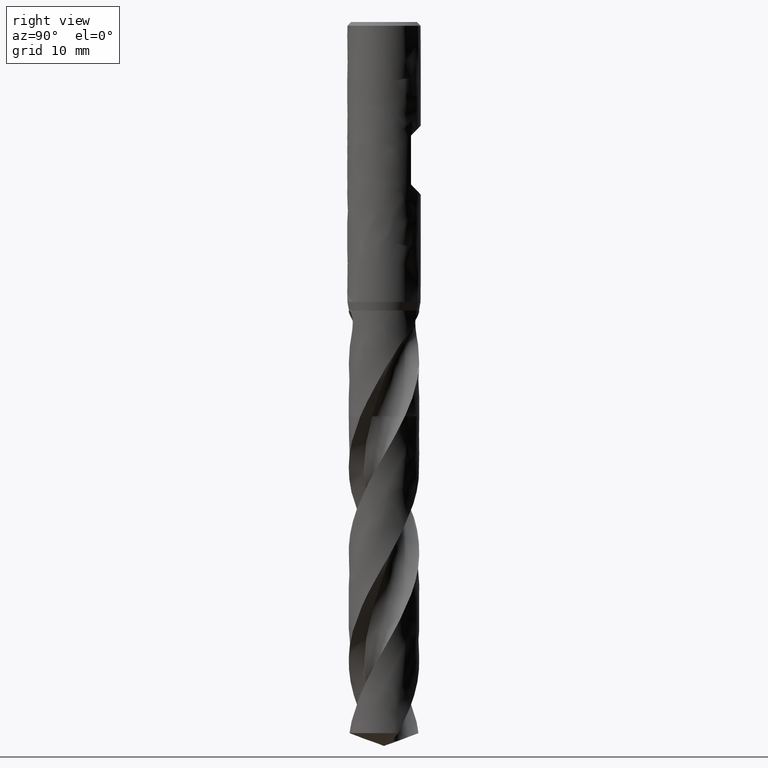
[diagram: clean part render]
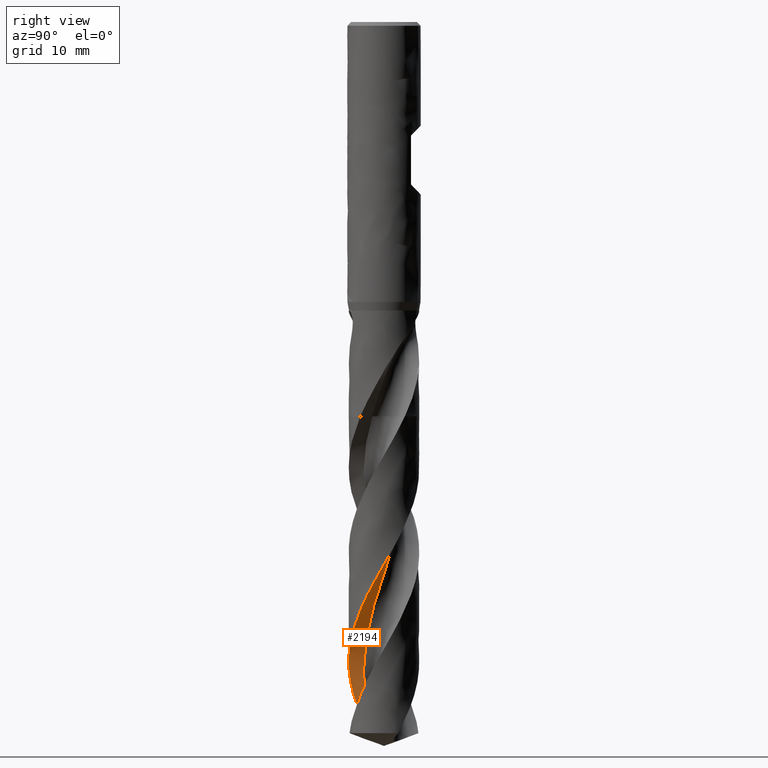
[diagram: same view with one face highlighted and labeled with its STEP entity id]
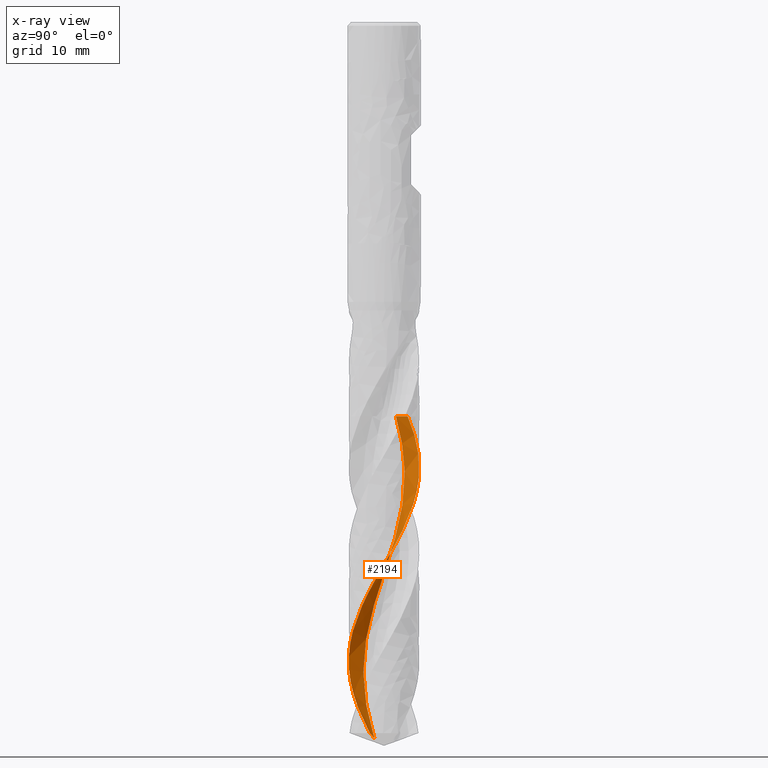
[diagram: x-ray of the same camera — body ghosted, the highlighted face saturated]
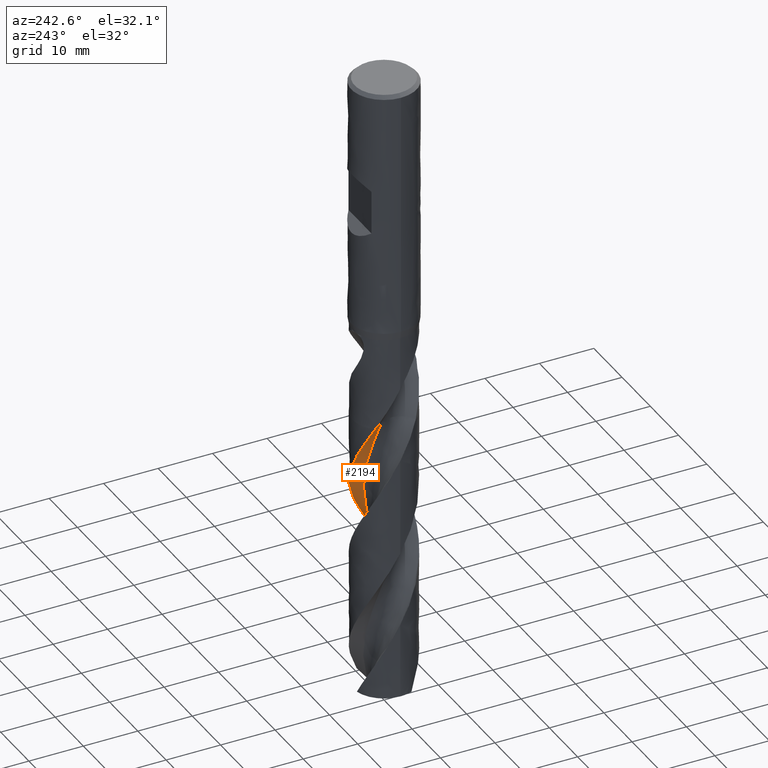
[diagram: same view with one face highlighted and labeled with its STEP entity id]
A machine part, right view. The second image highlights one B-rep face of the part: STEP entity #2194.
The next image is the same camera in x-ray: the body ghosted, the highlighted face saturated — about 0% of this face is hidden behind the body in this view.
A second angle (auxiliary view) of the same face is appended — the face is thin or edge-on in the first view.
In plain terms, the highlighted face is a freeform B-spline surface patch.
Its self-contained STEP definition (entity closure, byte-faithful):
#2001 = VERTEX_POINT('', #2002);
#2002 = CARTESIAN_POINT('', (-4.27134242140595, 3.84943293474481, -64.25));
#2011 = EDGE_CURVE('', #2001, #2012, #2014, .T.);
#2012 = VERTEX_POINT('', #2013);
#2013 = CARTESIAN_POINT('', (-2.85427294277105, 1.92458653094203, -64.25));
#2014 = LINE('', #2015, #2016);
#2015 = CARTESIAN_POINT('', (-4.27134242140596, 3.84943293474481, -64.25));
#2016 = VECTOR('', #2017, 2.39021329289064);
#2017 = DIRECTION('', (1.41706947863491, -1.92484640380278, 0.));
#2194 = ADVANCED_FACE('', (#2195), #2491, .T.);
#2195 = FACE_OUTER_BOUND('', #2196, .T.);
#2196 = EDGE_LOOP('', (#2197, #2198, #2402, #2435));
#2197 = ORIENTED_EDGE('', *, *, #2011, .F.);
#2198 = ORIENTED_EDGE('', *, *, #2199, .F.);
#2199 = EDGE_CURVE('', #2200, #2001, #2202, .T.);
#2200 = VERTEX_POINT('', #2201);
#2201 = CARTESIAN_POINT('', (-5.26135635836145, -2.31961834583396, -115.907171152969));
#2202 = B_SPLINE_CURVE_WITH_KNOTS('', 3, (#2203, #2204, #2205, #2206, #2207, #2208, #2209, #2210, #2211, #2212, #2213, #2214, #2215, #2216, #2217, #2218, #2219, #2220, #2221, #2222, #2223, #2224, #2225, #2226, #2227, #2228, #2229, #2230, #2231, #2232, #2233, #2234, #2235, #2236, #2237, #2238, #2239, #2240, #2241, #2242, #2243, #2244, #2245, #2246, #2247, #2248, #2249, #2250, #2251, #2252, #2253, #2254, #2255, #2256, #2257, #2258, #2259, #2260, #2261, #2262, #2263, #2264, #2265, #2266, #2267, #2268, #2269, #2270, #2271, #2272, #2273, #2274, #2275, #2276, #2277, #2278, #2279, #2280, #2281, #2282, #2283, #2284, #2285, #2286, #2287, #2288, #2289, #2290, #2291, #2292, #2293, #2294, #2295, #2296, #2297, #2298, #2299, #2300, #2301, #2302, #2303, #2304, #2305, #2306, #2307, #2308, #2309, #2310, #2311, #2312, #2313, #2314, #2315, #2316, #2317, #2318, #2319, #2320, #2321, #2322, #2323, #2324, #2325, #2326, #2327, #2328, #2329, #2330, #2331, #2332, #2333, #2334, #2335, #2336, #2337, #2338, #2339, #2340, #2341, #2342, #2343, #2344, #2345, #2346, #2347, #2348, #2349, #2350, #2351, #2352, #2353, #2354, #2355, #2356, #2357, #2358, #2359, #2360, #2361, #2362, #2363, #2364, #2365, #2366, #2367, #2368, #2369, #2370, #2371, #2372, #2373, #2374, #2375, #2376, #2377, #2378, #2379, #2380, #2381, #2382, #2383, #2384, #2385, #2386, #2387, #2388, #2389, #2390, #2391, #2392, #2393, #2394, #2395, #2396, #2397, #2398, #2399, #2400, #2401), .UNSPECIFIED., .F., .U., (4, 3, 3, 3, 3, 3, 3, 3, 3, 3, 3, 3, 3, 3, 3, 3, 3, 3, 3, 3, 3, 3, 3, 3, 3, 3, 3, 3, 3, 3, 3, 3, 3, 3, 3, 3, 3, 3, 3, 3, 3, 3, 3, 3, 3, 3, 3, 3, 3, 3, 3, 3, 3, 3, 3, 3, 3, 3, 3, 3, 3, 3, 3, 3, 3, 3, 4), (0., 0.998414479724243, 1.99659645598566, 2.99454959505258, 3.99227675722209, 4.98977972626542, 5.98705925085884, 6.98411508388555, 7.98094666830413, 8.97755268947959, 9.97393085938471, 10.9700778139643, 11.9659890210908, 12.9616591386549, 13.4046119723775, 13.4629950916536, 14.4626220986255, 15.4619818605631, 16.4610837318212, 17.4599356633324, 18.458544260042, 19.4569148333751, 20.4550514852051, 21.4529576306737, 22.4506359286902, 23.4480881072607, 24.4453149261284, 25.4423161335359, 26.4390906393307, 27.435636822129, 28.4319521918894, 29.4280332727842, 30.4238754839512, 31.4194730651083, 31.6164413630587, 31.6748227838148, 32.6744656250704, 33.673838739403, 34.6729515222966, 35.6718119551881, 36.67042668883, 37.6688011014597, 38.6669394625266, 39.6648452511906, 40.6625210692326, 41.6599686100853, 42.6571886210314, 43.6541808776715, 44.6509443866024, 45.6474774139095, 46.6437773655035, 47.6398406817852, 48.635662717946, 49.6312377126156, 49.7625682662065, 49.82094659498, 49.8793387001849, 50.8789880386061, 51.8783654414984, 52.8774803351429, 53.8763406892218, 54.8749532949484, 55.8733234669974, 56.8714553546491, 57.8693539970818, 58.8670161091653, 59.4941336467885), .UNSPECIFIED.);
#2203 = CARTESIAN_POINT('', (-5.26135635836145, -2.31961834583396, -115.907171152969));
#2204 = CARTESIAN_POINT('', (-5.19499713504465, -2.47013427969904, -115.61786083562));
#2205 = CARTESIAN_POINT('', (-5.12215416717777, -2.61784308502145, -115.328491218301));
#2206 = CARTESIAN_POINT('', (-5.04312508867052, -2.76213492429712, -115.039193236178));
#2207 = CARTESIAN_POINT('', (-4.96411441387715, -2.90639316194445, -114.749962623654));
#2208 = CARTESIAN_POINT('', (-4.87888593919967, -3.04729917764488, -114.4606725505));
#2209 = CARTESIAN_POINT('', (-4.78778802076556, -3.18427163857196, -114.171454315795));
#2210 = CARTESIAN_POINT('', (-4.69671098689215, -3.32121269801673, -113.882302385522));
#2211 = CARTESIAN_POINT('', (-4.59972739226941, -3.4542818106809, -113.593091139229));
#2212 = CARTESIAN_POINT('', (-4.49723457600089, -3.58292913248672, -113.303951367065));
#2213 = CARTESIAN_POINT('', (-4.39476496824561, -3.71154732334289, -113.014877067824));
#2214 = CARTESIAN_POINT('', (-4.28674278734925, -3.83580316939084, -112.725744056488));
#2215 = CARTESIAN_POINT('', (-4.17361230808771, -3.95518144991841, -112.436681899132));
#2216 = CARTESIAN_POINT('', (-4.06050724967946, -4.07453290568775, -112.147684695154));
#2217 = CARTESIAN_POINT('', (-3.94224437339595, -4.189063608864, -111.858629205161));
#2218 = CARTESIAN_POINT('', (-3.8193112082285, -4.29829755771981, -111.569644275695));
#2219 = CARTESIAN_POINT('', (-3.6964055805565, -4.40750703775662, -111.28072407995));
#2220 = CARTESIAN_POINT('', (-3.56877550656159, -4.51147216914094, -110.991745326284));
#2221 = CARTESIAN_POINT('', (-3.43694620910572, -4.60976146407965, -110.702837669436));
#2222 = CARTESIAN_POINT('', (-3.30514648119515, -4.70802871255513, -110.413994815088));
#2223 = CARTESIAN_POINT('', (-3.16909092017596, -4.80066636154309, -110.125092670704));
#2224 = CARTESIAN_POINT('', (-3.02933772961245, -4.88729095920699, -109.83626220189));
#2225 = CARTESIAN_POINT('', (-2.88961597104846, -4.97389607406481, -109.547496694164));
#2226 = CARTESIAN_POINT('', (-2.74613725925012, -5.05452864349765, -109.258671784042));
#2227 = CARTESIAN_POINT('', (-2.59949039122711, -5.12885461930029, -108.969918464394));
#2228 = CARTESIAN_POINT('', (-2.45287670648567, -5.20316377660679, -108.681230483901));
#2229 = CARTESIAN_POINT('', (-2.30303149537123, -5.27120198256391, -108.39248354019));
#2230 = CARTESIAN_POINT('', (-2.15057136138355, -5.33268626675121, -108.103807659944));
#2231 = CARTESIAN_POINT('', (-1.99814608393342, -5.39415649395715, -107.815197778863));
#2232 = CARTESIAN_POINT('', (-1.84303800233283, -5.44910359513386, -107.526529480144));
#2233 = CARTESIAN_POINT('', (-1.68588719547832, -5.49729791480527, -107.237931751545));
#2234 = CARTESIAN_POINT('', (-1.5287728563788, -5.54548105070565, -106.949400993721));
#2235 = CARTESIAN_POINT('', (-1.36954460205386, -5.58693666092133, -106.660811919677));
#2236 = CARTESIAN_POINT('', (-1.20885955871396, -5.62149077801488, -106.372293535193));
#2237 = CARTESIAN_POINT('', (-1.0482125429859, -5.65603671755484, -106.083843431271));
#2238 = CARTESIAN_POINT('', (-0.886036929015077, -5.68370008238491, -105.795334429359));
#2239 = CARTESIAN_POINT('', (-0.722999940138083, -5.70436421405238, -105.506896772363));
#2240 = CARTESIAN_POINT('', (-0.560002419153434, -5.72502334335977, -105.218528940174));
#2241 = CARTESIAN_POINT('', (-0.396072340438951, -5.73869573536417, -104.930101763175));
#2242 = CARTESIAN_POINT('', (-0.231883033956536, -5.74532246776152, -104.641746156039));
#2243 = CARTESIAN_POINT('', (-0.158838641752371, -5.74827056255914, -104.513462770761));
#2244 = CARTESIAN_POINT('', (-0.0857325556488287, -5.74982562374547, -104.385174925186));
#2245 = CARTESIAN_POINT('', (-0.0126247666488689, -5.7499861404413, -104.256893878824));
#2246 = CARTESIAN_POINT('', (-0.00298884056317718, -5.7500072972433, -104.2399858763));
#2247 = CARTESIAN_POINT('', (0.0066471790376687, -5.7500042319831, -104.223077879411));
#2248 = CARTESIAN_POINT('', (0.0162831568373254, -5.74997694419755, -104.206169915143));
#2249 = CARTESIAN_POINT('', (0.181268922698223, -5.74950972682824, -103.916674288231));
#2250 = CARTESIAN_POINT('', (0.346282890648198, -5.74193486125476, -103.627119179157));
#2251 = CARTESIAN_POINT('', (0.510639378247323, -5.72728098013217, -103.337636108872));
#2252 = CARTESIAN_POINT('', (0.674951926002038, -5.71263101664779, -103.048230430366));
#2253 = CARTESIAN_POINT('', (0.838680559321947, -5.6908993408074, -102.75876470623));
#2254 = CARTESIAN_POINT('', (1.00114654911802, -5.6621732212278, -102.469371386085));
#2255 = CARTESIAN_POINT('', (1.16357061360742, -5.63345451459275, -102.180052745593));
#2256 = CARTESIAN_POINT('', (1.32480448501073, -5.59773226237385, -101.890674135865));
#2257 = CARTESIAN_POINT('', (1.484179239903, -5.55515184165482, -101.601367703433));
#2258 = CARTESIAN_POINT('', (1.64351412490105, -5.51258207304234, -101.312133645178));
#2259 = CARTESIAN_POINT('', (1.80106235182901, -5.46313840473684, -101.022840079911));
#2260 = CARTESIAN_POINT('', (1.95616861996202, -5.40702361103369, -100.733618181112));
#2261 = CARTESIAN_POINT('', (2.11123710196099, -5.35092248770726, -100.444466740957));
#2262 = CARTESIAN_POINT('', (2.26393593753234, -5.28812771399915, -100.155256232916));
#2263 = CARTESIAN_POINT('', (2.41362862999289, -5.21889804810159, -99.8661170334373));
#2264 = CARTESIAN_POINT('', (2.56328564244805, -5.14968488344275, -99.5770467517399));
#2265 = CARTESIAN_POINT('', (2.71000700173067, -5.07400797599323, -99.2879173226473));
#2266 = CARTESIAN_POINT('', (2.85318160475269, -4.99217935678405, -98.9988595058917));
#2267 = CARTESIAN_POINT('', (2.99632266149517, -4.910369910289, -98.7098694163315));
#2268 = CARTESIAN_POINT('', (3.13598329285229, -4.82237473755611, -98.4208195896925));
#2269 = CARTESIAN_POINT('', (3.27158335534782, -4.72855605328001, -98.1318419139854));
#2270 = CARTESIAN_POINT('', (3.40715210281553, -4.63475903517909, -97.8429309738224));
#2271 = CARTESIAN_POINT('', (3.53872224006059, -4.53509964003096, -97.5539600654849));
#2272 = CARTESIAN_POINT('', (3.66574750329331, -4.42998817629334, -97.2650613636325));
#2273 = CARTESIAN_POINT('', (3.79274376341516, -4.32490071218666, -96.97622862473));
#2274 = CARTESIAN_POINT('', (3.91525375434385, -4.21431684596789, -96.6873362013117));
#2275 = CARTESIAN_POINT('', (4.03276780454588, -4.09869294222173, -96.3985156044928));
#2276 = CARTESIAN_POINT('', (4.15025522069966, -3.98309524413034, -96.1097604676057));
#2277 = CARTESIAN_POINT('', (4.26280227363194, -3.86240726952515, -95.8209461149368));
#2278 = CARTESIAN_POINT('', (4.36993942567419, -3.73712849871908, -95.5322031322085));
#2279 = CARTESIAN_POINT('', (4.47705237164695, -3.6118780328154, -95.2435253867259));
#2280 = CARTESIAN_POINT('', (4.57880722676732, -3.48198109500134, -94.9547886440624));
#2281 = CARTESIAN_POINT('', (4.67477889266686, -3.34797585186578, -94.6661232022484));
#2282 = CARTESIAN_POINT('', (4.77072884604596, -3.21400092592387, -94.3775230677754));
#2283 = CARTESIAN_POINT('', (4.86094216386709, -3.07585827648708, -94.0888635670653));
#2284 = CARTESIAN_POINT('', (4.94504247861889, -2.93411909858049, -93.8002758776926));
#2285 = CARTESIAN_POINT('', (5.02912367034773, -2.79241214982262, -93.5117538083955));
#2286 = CARTESIAN_POINT('', (5.1071322391051, -2.64704701187469, -93.223171894539));
#2287 = CARTESIAN_POINT('', (5.17874305618658, -2.49862369275554, -92.9346621029914));
#2288 = CARTESIAN_POINT('', (5.25033746996294, -2.35023437175411, -92.6462183980258));
#2289 = CARTESIAN_POINT('', (5.31556883473747, -2.19872238433029, -92.3577149159905));
#2290 = CARTESIAN_POINT('', (5.37416468325023, -2.04471366144653, -92.0692833618597));
#2291 = CARTESIAN_POINT('', (5.4327469602035, -1.89074060898308, -91.7809186122226));
#2292 = CARTESIAN_POINT('', (5.48472311439124, -1.73420267759043, -91.4924944827215));
#2293 = CARTESIAN_POINT('', (5.52987505303048, -1.5757480439053, -91.204141843767));
#2294 = CARTESIAN_POINT('', (5.57501637395087, -1.4173306716712, -90.9158570124713));
#2295 = CARTESIAN_POINT('', (5.61335734092214, -1.25692489534348, -90.6275131693843));
#2296 = CARTESIAN_POINT('', (5.64473608818179, -1.09519609877808, -90.3392405254912));
#2297 = CARTESIAN_POINT('', (5.67610731051907, -0.93350608631807, -90.0510370121231));
#2298 = CARTESIAN_POINT('', (5.7005341002247, -0.770419316203697, -89.7627743886341));
#2299 = CARTESIAN_POINT('', (5.71791240596873, -0.606611669579643, -89.474583257204));
#2300 = CARTESIAN_POINT('', (5.73528644270804, -0.442844262529469, -89.186462920322));
#2301 = CARTESIAN_POINT('', (5.74562334296849, -0.278282440618884, -88.8982829732978));
#2302 = CARTESIAN_POINT('', (5.74887758922533, -0.113606619990096, -88.6101749496833));
#2303 = CARTESIAN_POINT('', (5.74952140692683, -0.081027275969242, -88.5531758688184));
#2304 = CARTESIAN_POINT('', (5.74988828391299, -0.0484417536795222, -88.4961765180978));
#2305 = CARTESIAN_POINT('', (5.74997813973996, -0.0158553622659004, -88.4391779005877));
#2306 = CARTESIAN_POINT('', (5.75000477301494, -0.00619675299813195, -88.4222835053677));
#2307 = CARTESIAN_POINT('', (5.75000707004489, 0.00346196562732153, -88.4053891167743));
#2308 = CARTESIAN_POINT('', (5.74998503027653, 0.0131206553133768, -88.3884947609132));
#2309 = CARTESIAN_POINT('', (5.74960765171362, 0.178502721654577, -88.0992191373412));
#2310 = CARTESIAN_POINT('', (5.74208845467715, 0.343916764838995, -87.8098831822219));
#2311 = CARTESIAN_POINT('', (5.72745600443943, 0.508672504870602, -87.5206199902989));
#2312 = CARTESIAN_POINT('', (5.71282750237761, 0.673383789965933, -87.2314348483227));
#2313 = CARTESIAN_POINT('', (5.69108302682094, 0.837511128485139, -86.9421891626055));
#2314 = CARTESIAN_POINT('', (5.66231045120767, 1.00037010858215, -86.6530163105871));
#2315 = CARTESIAN_POINT('', (5.63354537069898, 1.16318666477157, -86.3639187865755));
#2316 = CARTESIAN_POINT('', (5.59774287263589, 1.32480883480664, -86.0747609286517));
#2317 = CARTESIAN_POINT('', (5.55504962372451, 1.4845617797715, -85.7856756085676));
#2318 = CARTESIAN_POINT('', (5.51236715802162, 1.64427437528164, -85.4966633039451));
#2319 = CARTESIAN_POINT('', (5.46277787116879, 1.80219169057783, -85.2075910552526));
#2320 = CARTESIAN_POINT('', (5.40648635105601, 1.95765301722372, -84.9185909532679));
#2321 = CARTESIAN_POINT('', (5.35020867750657, 2.11307610356092, -84.6296619394011));
#2322 = CARTESIAN_POINT('', (5.28720598022053, 2.26611640290159, -84.3406732031456));
#2323 = CARTESIAN_POINT('', (5.21773909839101, 2.41613300567701, -84.0517565048027));
#2324 = CARTESIAN_POINT('', (5.14828893407104, 2.5661135062995, -83.7629093355295));
#2325 = CARTESIAN_POINT('', (5.07234568277455, 2.71314097313869, -83.474002187889));
#2326 = CARTESIAN_POINT('', (4.99022376132018, 2.85660056920031, -83.1851674645563));
#2327 = CARTESIAN_POINT('', (4.90812125643704, 3.00002624626178, -82.8964010321243));
#2328 = CARTESIAN_POINT('', (4.81980586463479, 3.13995068281805, -82.6075742169657));
#2329 = CARTESIAN_POINT('', (4.72564304067073, 3.27578965322261, -82.3188201081626));
#2330 = CARTESIAN_POINT('', (4.63150215722623, 3.41159697230808, -82.0301332808502));
#2331 = CARTESIAN_POINT('', (4.53147423945327, 3.54338177518337, -81.7413860826177));
#2332 = CARTESIAN_POINT('', (4.42597370952589, 3.6705935109442, -81.4527114723966));
#2333 = CARTESIAN_POINT('', (4.32049749253743, 3.79777593034838, -81.1641033881746));
#2334 = CARTESIAN_POINT('', (4.2095033038589, 3.92044507185083, -80.8754352354375));
#2335 = CARTESIAN_POINT('', (4.09345204537419, 4.03808746218082, -80.5868393244554));
#2336 = CARTESIAN_POINT('', (3.97742734045992, 4.1557029348751, -80.2983094468103));
#2337 = CARTESIAN_POINT('', (3.85629442705369, 4.26834809691167, -80.0097198235671));
#2338 = CARTESIAN_POINT('', (3.73055729336889, 4.37555051175189, -79.7212021684286));
#2339 = CARTESIAN_POINT('', (3.60484884185244, 4.48272847241839, -79.4327503276737));
#2340 = CARTESIAN_POINT('', (3.4744800843351, 4.5845157885636, -79.1442387198362));
#2341 = CARTESIAN_POINT('', (3.33999333342826, 4.68048550181013, -78.8557992592209));
#2342 = CARTESIAN_POINT('', (3.20553729784631, 4.77643329660818, -78.5674256750707));
#2343 = CARTESIAN_POINT('', (3.06690376971576, 4.86660999019681, -78.2789919365138));
#2344 = CARTESIAN_POINT('', (2.92466851968769, 4.95063774174074, -77.990630705613));
#2345 = CARTESIAN_POINT('', (2.78246590380234, 5.0346462141423, -77.7023356356784));
#2346 = CARTESIAN_POINT('', (2.63659912053646, 5.11254644409814, -77.4139802407501));
#2347 = CARTESIAN_POINT('', (2.48767378000699, 5.18401187925585, -77.1256974121349));
#2348 = CARTESIAN_POINT('', (2.33878287548367, 5.25546078946116, -76.8374812431575));
#2349 = CARTESIAN_POINT('', (2.18676756092678, 5.32051013511226, -76.5492049222549));
#2350 = CARTESIAN_POINT('', (2.03225976084006, 5.37888652645419, -76.2610009234528));
#2351 = CARTESIAN_POINT('', (1.87778809805604, 5.43724926434094, -75.9728643317015));
#2352 = CARTESIAN_POINT('', (1.72075444172416, 5.4889688347522, -75.6846679125423));
#2353 = CARTESIAN_POINT('', (1.56181273855596, 5.53382697323332, -75.3965434920414));
#2354 = CARTESIAN_POINT('', (1.40290878628749, 5.57867445727288, -75.1084875051606));
#2355 = CARTESIAN_POINT('', (1.24202422325325, 5.61668449036365, -74.8203718593115));
#2356 = CARTESIAN_POINT('', (1.07982948912415, 5.64769583763313, -74.5323281490687));
#2357 = CARTESIAN_POINT('', (0.91767404402862, 5.67869967290865, -74.2443542127249));
#2358 = CARTESIAN_POINT('', (0.754134437763865, 5.70272250752797, -73.9563203862808));
#2359 = CARTESIAN_POINT('', (0.589891274091623, 5.71966155333968, -73.6683588157489));
#2360 = CARTESIAN_POINT('', (0.42568885552705, 5.73659639694759, -73.3804686821337));
#2361 = CARTESIAN_POINT('', (0.260708798224374, 5.74645866665594, -73.0925183551604));
#2362 = CARTESIAN_POINT('', (0.0956368597368394, 5.74920460507909, -72.8046404866647));
#2363 = CARTESIAN_POINT('', (0.0738615146548859, 5.74956683355527, -72.7666652863649));
#2364 = CARTESIAN_POINT('', (0.052083837592155, 5.74980535208476, -72.7286900416555));
#2365 = CARTESIAN_POINT('', (0.0303054119077312, 5.7499201370114, -72.6907150538365));
#2366 = CARTESIAN_POINT('', (0.0206245869967566, 5.74997116056991, -72.6738346230194));
#2367 = CARTESIAN_POINT('', (0.0109435893449332, 5.74999773567117, -72.6569541996631));
#2368 = CARTESIAN_POINT('', (0.00126255805734198, 5.74999986138671, -72.6400738102238));
#2369 = CARTESIAN_POINT('', (-0.00842075781197139, 5.75000198760389, -72.6231894372596));
#2370 = CARTESIAN_POINT('', (-0.0181041226236053, 5.7499796528979, -72.6063050715648));
#2371 = CARTESIAN_POINT('', (-0.0277873971703209, 5.74993285704786, -72.5894207396165));
#2372 = CARTESIAN_POINT('', (-0.193561159914692, 5.74913173093033, -72.3003677725656));
#2373 = CARTESIAN_POINT('', (-0.35934883199088, 5.74115468826081, -72.0112538344628));
#2374 = CARTESIAN_POINT('', (-0.524455021110772, 5.72603238995662, -71.7222132449486));
#2375 = CARTESIAN_POINT('', (-0.68951629624217, 5.71091420538515, -71.4332512834117));
#2376 = CARTESIAN_POINT('', (-0.853971593958168, 5.68864776592014, -71.1442283498628));
#2377 = CARTESIAN_POINT('', (-1.017130982996, 5.65932368427799, -70.8552786807635));
#2378 = CARTESIAN_POINT('', (-1.18024751450239, 5.6300073052741, -70.566404910879));
#2379 = CARTESIAN_POINT('', (-1.3421435584746, 5.59362353089312, -70.2774704177592));
#2380 = CARTESIAN_POINT('', (-1.5021390150824, 5.55032236715737, -69.9886089095242));
#2381 = CARTESIAN_POINT('', (-1.66209371043811, 5.50703223504519, -69.6998209931086));
#2382 = CARTESIAN_POINT('', (-1.82022291297292, 5.45680814788071, -69.4109726119212));
#2383 = CARTESIAN_POINT('', (-1.97586143875995, 5.39985847729563, -69.1221969462508));
#2384 = CARTESIAN_POINT('', (-2.13146136136471, 5.34292293199543, -68.8334929059032));
#2385 = CARTESIAN_POINT('', (-2.28464435822746, 5.27923861630113, -68.5447284099635));
#2386 = CARTESIAN_POINT('', (-2.43476634652502, 5.20907024696627, -68.2560368726426));
#2387 = CARTESIAN_POINT('', (-2.58485188963303, 5.13891891244124, -67.9674154211094));
#2388 = CARTESIAN_POINT('', (-2.73194716372398, 5.0622543049404, -67.6787333541141));
#2389 = CARTESIAN_POINT('', (-2.87543372727482, 4.97939563401528, -67.3901241564026));
#2390 = CARTESIAN_POINT('', (-3.01888604440055, 4.89655673925037, -67.1015838420278));
#2391 = CARTESIAN_POINT('', (-3.15879651990065, 4.80748921151391, -66.8129821332764));
#2392 = CARTESIAN_POINT('', (-3.29457922009732, 4.71256275952936, -66.5244541626478));
#2393 = CARTESIAN_POINT('', (-3.43033019035325, 4.61765849012545, -66.235993615744));
#2394 = CARTESIAN_POINT('', (-3.56201836841143, 4.51685376203364, -65.9474736431743));
#2395 = CARTESIAN_POINT('', (-3.68908773011981, 4.41057045284162, -65.6590263015351));
#2396 = CARTESIAN_POINT('', (-3.8161269727768, 4.30431233581558, -65.3706473301165));
#2397 = CARTESIAN_POINT('', (-3.93860571256672, 4.19253135235732, -65.082205628934));
#2398 = CARTESIAN_POINT('', (-4.05600872294437, 4.07569543015658, -64.793834187555));
#2399 = CARTESIAN_POINT('', (-4.12980674121714, 4.00225387619855, -64.6125676183949));
#2400 = CARTESIAN_POINT('', (-4.20163108710808, 3.92678484202231, -64.4312578019143));
#2401 = CARTESIAN_POINT('', (-4.27134242140595, 3.84943293474481, -64.25));
#2402 = ORIENTED_EDGE('', *, *, #2403, .F.);
#2403 = EDGE_CURVE('', #2404, #2200, #2406, .T.);
#2404 = VERTEX_POINT('', #2405);
#2405 = CARTESIAN_POINT('', (-3.06555239898358, -1.56658993686945, -116.74697911427));
#2406 = B_SPLINE_CURVE_WITH_KNOTS('', 3, (#2407, #2408, #2409, #2410, #2411, #2412, #2413, #2414, #2415, #2416, #2417, #2418, #2419, #2420, #2421, #2422, #2423, #2424, #2425, #2426, #2427, #2428, #2429, #2430, #2431, #2432, #2433, #2434), .UNSPECIFIED., .F., .U., (4, 3, 3, 3, 3, 3, 3, 3, 3, 4), (0., 0.29586615608504, 0.591660558273807, 0.887406951213019, 1.18312221841239, 1.47881850632359, 1.77450464066045, 2.07018708480318, 2.36587059806033, 2.47131311295093), .UNSPECIFIED.);
#2407 = CARTESIAN_POINT('', (-3.06555239898358, -1.56658993686945, -116.74697911427));
#2408 = CARTESIAN_POINT('', (-3.15577962638181, -1.58894870105234, -116.714033063725));
#2409 = CARTESIAN_POINT('', (-3.24572914523407, -1.61224938781517, -116.680951018448));
#2410 = CARTESIAN_POINT('', (-3.33538422365397, -1.63648377565096, -116.647770142841));
#2411 = CARTESIAN_POINT('', (-3.4250175587921, -1.6607122861273, -116.614597314309));
#2412 = CARTESIAN_POINT('', (-3.5143654601937, -1.68587644425703, -116.581322206108));
#2413 = CARTESIAN_POINT('', (-3.60340901535193, -1.71196697698431, -116.547973721473));
#2414 = CARTESIAN_POINT('', (-3.69243811819386, -1.73805327505777, -116.514630649501));
#2415 = CARTESIAN_POINT('', (-3.78117168784477, -1.76506820405568, -116.481210816569));
#2416 = CARTESIAN_POINT('', (-3.86958936711453, -1.7930015825221, -116.447737291082));
#2417 = CARTESIAN_POINT('', (-3.95799774089233, -1.82093202114852, -116.414267288507));
#2418 = CARTESIAN_POINT('', (-4.04609886779592, -1.84978342881484, -116.380740258862));
#2419 = CARTESIAN_POINT('', (-4.13387146263757, -1.87954481305903, -116.347175059161));
#2420 = CARTESIAN_POINT('', (-4.22163842415029, -1.90930428718916, -116.313612013707));
#2421 = CARTESIAN_POINT('', (-4.30908534093967, -1.93997648713808, -116.280007504868));
#2422 = CARTESIAN_POINT('', (-4.39619036877683, -1.97154968022995, -116.246377288436));
#2423 = CARTESIAN_POINT('', (-4.48329240561473, -2.0031217891663, -116.212748226792));
#2424 = CARTESIAN_POINT('', (-4.57006089198365, -2.03559784514965, -116.17909020026));
#2425 = CARTESIAN_POINT('', (-4.65647369274781, -2.06896543022309, -116.145416637908));
#2426 = CARTESIAN_POINT('', (-4.74288541507111, -2.10233259886555, -116.111743495806));
#2427 = CARTESIAN_POINT('', (-4.82894964516771, -2.13659443591272, -116.078051593736));
#2428 = CARTESIAN_POINT('', (-4.91464415525979, -2.17173788340838, -116.044352584324));
#2429 = CARTESIAN_POINT('', (-5.00033897520197, -2.20688145797403, -116.010653453065));
#2430 = CARTESIAN_POINT('', (-5.08567212501278, -2.24290995237296, -115.976944021979));
#2431 = CARTESIAN_POINT('', (-5.1706214333105, -2.27980970795032, -115.943234564792));
#2432 = CARTESIAN_POINT('', (-5.2009148663344, -2.29296838218299, -115.931213570107));
#2433 = CARTESIAN_POINT('', (-5.23116017506689, -2.30623814015383, -115.91919228917));
#2434 = CARTESIAN_POINT('', (-5.26135635836145, -2.31961834583397, -115.907171152969));
#2435 = ORIENTED_EDGE('', *, *, #2436, .T.);
#2436 = EDGE_CURVE('', #2404, #2012, #2437, .T.);
#2437 = B_SPLINE_CURVE_WITH_KNOTS('', 3, (#2438, #2439, #2440, #2441, #2442, #2443, #2444, #2445, #2446, #2447, #2448, #2449, #2450, #2451, #2452, #2453, #2454, #2455, #2456, #2457, #2458, #2459, #2460, #2461, #2462, #2463, #2464, #2465, #2466, #2467, #2468, #2469, #2470, #2471, #2472, #2473, #2474, #2475, #2476, #2477, #2478, #2479, #2480, #2481, #2482, #2483, #2484, #2485, #2486, #2487, #2488, #2489, #2490), .UNSPECIFIED., .F., .U., (4, 1, 1, 1, 1, 1, 1, 1, 1, 1, 1, 1, 1, 1, 1, 1, 1, 1, 1, 1, 1, 1, 1, 1, 1, 1, 1, 1, 1, 1, 1, 1, 1, 1, 1, 1, 1, 1, 1, 1, 1, 1, 1, 1, 1, 1, 1, 1, 1, 1, 4), (1.3030208857299, 2.12149253731343, 3.18223880597015, 4.24298507462687, 5.30373134328358, 6.3644776119403, 7.42522388059701, 8.48597014925373, 9.54671641791045, 10.6074626865672, 11.6682089552239, 12.7289552238806, 13.7897014925373, 14.850447761194, 15.9111940298507, 16.9719402985075, 18.0326865671642, 19.0934328358209, 20.1541791044776, 21.2149253731343, 22.275671641791, 23.3364179104478, 24.3971641791045, 25.4579104477612, 26.5186567164179, 27.5794029850746, 28.6401492537313, 29.7008955223881, 30.7616417910448, 31.8223880597015, 32.8831343283582, 33.9438805970149, 35.0046268656716, 36.0653731343284, 37.1261194029851, 38.1868656716418, 39.2476119402985, 40.3083582089552, 41.3691044776119, 42.4298507462687, 43.4905970149254, 44.5513432835821, 45.6120895522388, 46.6728358208955, 47.7335820895522, 48.794328358209, 49.8550746268657, 50.9158208955224, 51.9765671641791, 53.0373134328358, 53.8), .UNSPECIFIED.);
#2438 = CARTESIAN_POINT('', (-3.06555239898358, -1.56658993686945, -116.74697911427));
#2439 = CARTESIAN_POINT('', (-3.02095341783298, -1.6486285462853, -116.474155230409));
#2440 = CARTESIAN_POINT('', (-2.91107895506384, -1.83267223357873, -115.847749256996));
#2441 = CARTESIAN_POINT('', (-2.71364564472876, -2.10298871618393, -114.86776119403));
#2442 = CARTESIAN_POINT('', (-2.47122005441374, -2.37103062137974, -113.807014925373));
#2443 = CARTESIAN_POINT('', (-2.20282293429321, -2.61175380485283, -112.746268656716));
#2444 = CARTESIAN_POINT('', (-1.91147174609903, -2.82269713520918, -111.68552238806));
#2445 = CARTESIAN_POINT('', (-1.60040965991812, -3.00172503455453, -110.624776119403));
#2446 = CARTESIAN_POINT('', (-1.27307307372826, -3.14704922902886, -109.564029850746));
#2447 = CARTESIAN_POINT('', (-0.933054551279939, -3.2572451146625, -108.50328358209));
#2448 = CARTESIAN_POINT('', (-0.584065141825771, -3.33126483639336, -107.442537313433));
#2449 = CARTESIAN_POINT('', (-0.229895498503287, -3.36844637591841, -106.381791044776));
#2450 = CARTESIAN_POINT('', (0.125623559974846, -3.3685187422388, -105.321044776119));
#2451 = CARTESIAN_POINT('', (0.47866072365662, -3.33160319269212, -104.260298507463));
#2452 = CARTESIAN_POINT('', (0.825423693765859, -3.25821050460753, -103.199552238806));
#2453 = CARTESIAN_POINT('', (1.16219813267177, -3.14923434044321, -102.138805970149));
#2454 = CARTESIAN_POINT('', (1.48538568199951, -3.00594078985747, -101.078059701493));
#2455 = CARTESIAN_POINT('', (1.79154068194009, -2.82995420678747, -100.017313432836));
#2456 = CARTESIAN_POINT('', (2.07740523840939, -2.62323949426832, -98.9565671641791));
#2457 = CARTESIAN_POINT('', (2.33994230198215, -2.3880810224468, -97.8958208955224));
#2458 = CARTESIAN_POINT('', (2.57636644259195, -2.12705839621172, -96.8350746268657));
#2459 = CARTESIAN_POINT('', (2.78417202684552, -1.84301931770343, -95.7743283582089));
#2460 = CARTESIAN_POINT('', (2.96115853018663, -1.53904981547821, -94.7135820895522));
#2461 = CARTESIAN_POINT('', (3.10545274384472, -1.21844213606775, -93.6528358208955));
#2462 = CARTESIAN_POINT('', (3.21552766626772, -0.884660614899999, -92.5920895522388));
#2463 = CARTESIAN_POINT('', (3.29021790030666, -0.541305861867178, -91.5313432835821));
#2464 = CARTESIAN_POINT('', (3.32873141051877, -0.192077612093368, -90.4705970149254));
#2465 = CARTESIAN_POINT('', (3.33065752930117, 0.159263395451902, -89.4098507462687));
#2466 = CARTESIAN_POINT('', (3.29597113586678, 0.508934140022388, -88.3491044776119));
#2467 = CARTESIAN_POINT('', (3.22503296802747, 0.853168264888517, -87.2883582089552));
#2468 = CARTESIAN_POINT('', (3.1185860630536, 1.188254867794, -86.2276119402985));
#2469 = CARTESIAN_POINT('', (2.97774836022555, 1.51057675831204, -85.1668656716418));
#2470 = CARTESIAN_POINT('', (2.80400153377692, 1.81664780902672, -84.1061194029851));
#2471 = CARTESIAN_POINT('', (2.59917616044178, 2.10314903551214, -83.0453731343284));
#2472 = CARTESIAN_POINT('', (2.3654333604614, 2.36696305142484, -81.9846268656716));
#2473 = CARTESIAN_POINT('', (2.10524308438017, 2.60520655957643, -80.9238805970149));
#2474 = CARTESIAN_POINT('', (1.82135924997815, 2.81526055750238, -79.8631343283582));
#2475 = CARTESIAN_POINT('', (1.51679196397564, 2.99479795664891, -78.8023880597015));
#2476 = CARTESIAN_POINT('', (1.19477709141522, 3.14180833770779, -77.7416417910448));
#2477 = CARTESIAN_POINT('', (0.858743461703144, 3.2546195906362, -76.6808955223881));
#2478 = CARTESIAN_POINT('', (0.512278023659425, 3.33191621635728, -75.6201492537313));
#2479 = CARTESIAN_POINT('', (0.159089283395204, 3.37275409760664, -74.5594029850746));
#2480 = CARTESIAN_POINT('', (-0.197030625628455, 3.37657157940781, -73.4986567164179));
#2481 = CARTESIAN_POINT('', (-0.552244867268293, 3.34319673203594, -72.4379104477612));
#2482 = CARTESIAN_POINT('', (-0.902711470639382, 3.27285071168973, -71.3771641791045));
#2483 = CARTESIAN_POINT('', (-1.24462305763814, 3.16614714543124, -70.3164179104478));
#2484 = CARTESIAN_POINT('', (-1.57424670445473, 3.02408759888779, -69.255671641791));
#2485 = CARTESIAN_POINT('', (-1.88796218295764, 2.84805287042235, -68.1949253731343));
#2486 = CARTESIAN_POINT('', (-2.18230327676064, 2.639791209705, -67.1341791044776));
#2487 = CARTESIAN_POINT('', (-2.45398281412043, 2.40139968425526, -66.0734328358209));
#2488 = CARTESIAN_POINT('', (-2.67693165701926, 2.16023587693919, -65.112039800995));
#2489 = CARTESIAN_POINT('', (-2.8038023816587, 1.99546545856633, -64.5042288557214));
#2490 = CARTESIAN_POINT('', (-2.85427294277105, 1.92458653094203, -64.25));
#2491 = B_SPLINE_SURFACE_WITH_KNOTS('', 3, 1, ((#2492, #2493), (#2494, #2495), (#2496, #2497), (#2498, #2499), (#2500, #2501), (#2502, #2503), (#2504, #2505), (#2506, #2507), (#2508, #2509), (#2510, #2511), (#2512, #2513), (#2514, #2515), (#2516, #2517), (#2518, #2519), (#2520, #2521), (#2522, #2523), (#2524, #2525), (#2526, #2527), (#2528, #2529), (#2530, #2531), (#2532, #2533), (#2534, #2535), (#2536, #2537), (#2538, #2539), (#2540, #2541), (#2542, #2543), (#2544, #2545), (#2546, #2547), (#2548, #2549), (#2550, #2551), (#2552, #2553), (#2554, #2555), (#2556, #2557), (#2558, #2559), (#2560, #2561), (#2562, #2563), (#2564, #2565), (#2566, #2567), (#2568, #2569), (#2570, #2571), (#2572, #2573), (#2574, #2575), (#2576, #2577), (#2578, #2579), (#2580, #2581), (#2582, #2583), (#2584, #2585), (#2586, #2587), (#2588, #2589), (#2590, #2591), (#2592, #2593), (#2594, #2595), (#2596, #2597)), .UNSPECIFIED., .F., .F., .U., (4, 1, 1, 1, 1, 1, 1, 1, 1, 1, 1, 1, 1, 1, 1, 1, 1, 1, 1, 1, 1, 1, 1, 1, 1, 1, 1, 1, 1, 1, 1, 1, 1, 1, 1, 1, 1, 1, 1, 1, 1, 1, 1, 1, 1, 1, 1, 1, 1, 1, 4), (2, 2), (1.3030208857299, 2.12149253731343, 3.18223880597015, 4.24298507462687, 5.30373134328358, 6.3644776119403, 7.42522388059701, 8.48597014925373, 9.54671641791045, 10.6074626865672, 11.6682089552239, 12.7289552238806, 13.7897014925373, 14.850447761194, 15.9111940298507, 16.9719402985075, 18.0326865671642, 19.0934328358209, 20.1541791044776, 21.2149253731343, 22.275671641791, 23.3364179104478, 24.3971641791045, 25.4579104477612, 26.5186567164179, 27.5794029850746, 28.6401492537313, 29.7008955223881, 30.7616417910448, 31.8223880597015, 32.8831343283582, 33.9438805970149, 35.0046268656716, 36.0653731343284, 37.1261194029851, 38.1868656716418, 39.2476119402985, 40.3083582089552, 41.3691044776119, 42.4298507462687, 43.4905970149254, 44.5513432835821, 45.6120895522388, 46.6728358208955, 47.7335820895522, 48.794328358209, 49.8550746268657, 50.9158208955224, 51.9765671641791, 53.0373134328358, 53.8), (0., 0.199195097751553), .UNSPECIFIED.);
#2492 = CARTESIAN_POINT('', (-3.06555239898358, -1.56658993686945, -116.74697911427));
#2493 = CARTESIAN_POINT('', (-5.63573544727121, -1.90130898077028, -116.74697911427));
#2494 = CARTESIAN_POINT('', (-3.02095341783298, -1.6486285462853, -116.474155230409));
#2495 = CARTESIAN_POINT('', (-5.5802823837063, -2.05280652726085, -116.474155230409));
#2496 = CARTESIAN_POINT('', (-2.91107895506384, -1.83267223357873, -115.847749256996));
#2497 = CARTESIAN_POINT('', (-5.4390938867591, -2.39515941229813, -115.847749256996));
#2498 = CARTESIAN_POINT('', (-2.71364564472876, -2.10298871618393, -114.86776119403));
#2499 = CARTESIAN_POINT('', (-5.17010414064361, -2.90712165664356, -114.86776119403));
#2500 = CARTESIAN_POINT('', (-2.47122005441374, -2.37103062137974, -113.807014925373));
#2501 = CARTESIAN_POINT('', (-4.82364502130965, -3.42658649594785, -113.807014925373));
#2502 = CARTESIAN_POINT('', (-2.20282293429321, -2.61175380485283, -112.746268656716));
#2503 = CARTESIAN_POINT('', (-4.42588372740324, -3.90593735094494, -112.746268656716));
#2504 = CARTESIAN_POINT('', (-1.91147174609903, -2.82269713520918, -111.68552238806));
#2505 = CARTESIAN_POINT('', (-3.98135417531246, -4.34020417247143, -111.68552238806));
#2506 = CARTESIAN_POINT('', (-1.60040965991812, -3.00172503455453, -110.624776119403));
#2507 = CARTESIAN_POINT('', (-3.49505844067057, -4.72491615618495, -110.624776119403));
#2508 = CARTESIAN_POINT('', (-1.27307307372826, -3.14704922902886, -109.564029850746));
#2509 = CARTESIAN_POINT('', (-2.97241675419481, -5.05614713760472, -109.564029850746));
#2510 = CARTESIAN_POINT('', (-0.933054551279939, -3.2572451146625, -108.50328358209));
#2511 = CARTESIAN_POINT('', (-2.41920830415231, -5.33055294438733, -108.50328358209));
#2512 = CARTESIAN_POINT('', (-0.584065141825771, -3.33126483639336, -107.442537313433));
#2513 = CARTESIAN_POINT('', (-1.8415101503058, -5.54540328775422, -107.442537313433));
#2514 = CARTESIAN_POINT('', (-0.229895498503287, -3.36844637591841, -106.381791044776));
#2515 = CARTESIAN_POINT('', (-1.24563307433516, -5.69860713698631, -106.381791044776));
#2516 = CARTESIAN_POINT('', (0.125623559974846, -3.3685187422388, -105.321044776119));
#2517 = CARTESIAN_POINT('', (-0.638055492234483, -5.78873157419885, -105.321044776119));
#2518 = CARTESIAN_POINT('', (0.47866072365662, -3.33160319269212, -104.260298507463));
#2519 = CARTESIAN_POINT('', (-0.0253559584367961, -5.81501392481508, -104.260298507463));
#2520 = CARTESIAN_POINT('', (0.825423693765859, -3.25821050460753, -103.199552238806));
#2521 = CARTESIAN_POINT('', (0.585855036039238, -5.77736709487858, -103.199552238806));
#2522 = CARTESIAN_POINT('', (1.16219813267177, -3.14923434044321, -102.138805970149));
#2523 = CARTESIAN_POINT('', (1.18900331023877, -5.67637809212146, -102.138805970149));
#2524 = CARTESIAN_POINT('', (1.48538568199951, -3.00594078985747, -101.078059701493));
#2525 = CARTESIAN_POINT('', (1.77761861515811, -5.51329977736058, -101.078059701493));
#2526 = CARTESIAN_POINT('', (1.79154068194009, -2.82995420678747, -100.017313432836));
#2527 = CARTESIAN_POINT('', (2.34540097386166, -5.29003595512208, -100.017313432836));
#2528 = CARTESIAN_POINT('', (2.07740523840939, -2.62323949426832, -98.9565671641791));
#2529 = CARTESIAN_POINT('', (2.88628509727427, -5.00911997506886, -98.9565671641791));
#2530 = CARTESIAN_POINT('', (2.33994230198215, -2.3880810224468, -97.8958208955224));
#2531 = CARTESIAN_POINT('', (3.39450225433705, -4.6736870761014, -97.8958208955224));
#2532 = CARTESIAN_POINT('', (2.57636644259195, -2.12705839621172, -96.8350746268657));
#2533 = CARTESIAN_POINT('', (3.86463900166686, -4.28744076300679, -96.8350746268657));
#2534 = CARTESIAN_POINT('', (2.78417202684552, -1.84301931770343, -95.7743283582089));
#2535 = CARTESIAN_POINT('', (4.29169220962326, -3.85461356060681, -95.774328358209));
#2536 = CARTESIAN_POINT('', (2.96115853018663, -1.53904981547821, -94.7135820895522));
#2537 = CARTESIAN_POINT('', (4.67111985836134, -3.37992254209511, -94.7135820895522));
#2538 = CARTESIAN_POINT('', (3.10545274384472, -1.21844213606775, -93.6528358208955));
#2539 = CARTESIAN_POINT('', (4.99888711872288, -2.86852007622163, -93.6528358208955));
#2540 = CARTESIAN_POINT('', (3.21552766626772, -0.884660614899999, -92.5920895522388));
#2541 = CARTESIAN_POINT('', (5.27150727831299, -2.32594028179387, -92.5920895522388));
#2542 = CARTESIAN_POINT('', (3.29021790030666, -0.541305861867178, -91.5313432835821));
#2543 = CARTESIAN_POINT('', (5.48607712242296, -1.75804171726465, -91.5313432835821));
#2544 = CARTESIAN_POINT('', (3.32873141051877, -0.192077612093368, -90.4705970149254));
#2545 = CARTESIAN_POINT('', (5.64030643216291, -1.17094686764674, -90.4705970149254));
#2546 = CARTESIAN_POINT('', (3.33065752930117, 0.159263395451902, -89.4098507462687));
#2547 = CARTESIAN_POINT('', (5.73254131780382, -0.570979020358166, -89.4098507462687));
#2548 = CARTESIAN_POINT('', (3.29597113586678, 0.508934140022388, -88.3491044776119));
#2549 = CARTESIAN_POINT('', (5.76178116342255, 0.0354028543788919, -88.3491044776119));
#2550 = CARTESIAN_POINT('', (3.22503296802747, 0.853168264888517, -87.2883582089552));
#2551 = CARTESIAN_POINT('', (5.72768901900073, 0.641670584485189, -87.2883582089552));
#2552 = CARTESIAN_POINT('', (3.1185860630536, 1.188254867794, -86.2276119402985));
#2553 = CARTESIAN_POINT('', (5.63059533764041, 1.24129399143142, -86.2276119402985));
#2554 = CARTESIAN_POINT('', (2.97774836022555, 1.51057675831204, -85.1668656716418));
#2555 = CARTESIAN_POINT('', (5.47149501800628, 1.82780814623552, -85.1668656716418));
#2556 = CARTESIAN_POINT('', (2.80400153377692, 1.81664780902672, -84.1061194029851));
#2557 = CARTESIAN_POINT('', (5.25203777495916, 2.39488003106001, -84.1061194029851));
#2558 = CARTESIAN_POINT('', (2.59917616044178, 2.10314903551214, -83.0453731343284));
#2559 = CARTESIAN_POINT('', (4.97451192407689, 2.9363739561818, -83.0453731343284));
#2560 = CARTESIAN_POINT('', (2.3654333604614, 2.36696305142484, -81.9846268656716));
#2561 = CARTESIAN_POINT('', (4.64182172783476, 3.44641509272201, -81.9846268656716));
#2562 = CARTESIAN_POINT('', (2.10524308438017, 2.60520655957643, -80.9238805970149));
#2563 = CARTESIAN_POINT('', (4.25745851211158, 3.91945049791858, -80.9238805970149));
#2564 = CARTESIAN_POINT('', (1.82135924997815, 2.81526055750238, -79.8631343283582));
#2565 = CARTESIAN_POINT('', (3.82546582087435, 4.35030703178164, -79.8631343283582));
#2566 = CARTESIAN_POINT('', (1.51679196397564, 2.99479795664891, -78.8023880597015));
#2567 = CARTESIAN_POINT('', (3.35039893387398, 4.73424559152066, -78.8023880597015));
#2568 = CARTESIAN_POINT('', (1.19477709141522, 3.14180833770779, -77.7416417910448));
#2569 = CARTESIAN_POINT('', (2.8372791264258, 5.06701112298069, -77.7416417910448));
#2570 = CARTESIAN_POINT('', (0.858743461703144, 3.2546195906362, -76.6808955223881));
#2571 = CARTESIAN_POINT('', (2.29154310149719, 5.34487790617124, -76.6808955223881));
#2572 = CARTESIAN_POINT('', (0.512278023659425, 3.33191621635728, -75.6201492537313));
#2573 = CARTESIAN_POINT('', (1.71898807146508, 5.56468965469245, -75.6201492537313));
#2574 = CARTESIAN_POINT('', (0.159089283395204, 3.37275409760664, -74.5594029850746));
#2575 = CARTESIAN_POINT('', (1.12571301131209, 5.72389401550203, -74.5594029850746));
#2576 = CARTESIAN_POINT('', (-0.197030625628455, 3.37657157940781, -73.4986567164179));
#2577 = CARTESIAN_POINT('', (0.518056639938276, 5.82057110796194, -73.4986567164179));
#2578 = CARTESIAN_POINT('', (-0.552244867268293, 3.34319673203594, -72.4379104477612));
#2579 = CARTESIAN_POINT('', (-0.0974672649683035, 5.85345579042712, -72.4379104477612));
#2580 = CARTESIAN_POINT('', (-0.902711470639382, 3.27285071168973, -71.3771641791045));
#2581 = CARTESIAN_POINT('', (-0.714236639316711, 5.82195342051245, -71.3771641791045));
#2582 = CARTESIAN_POINT('', (-1.24462305763814, 3.16614714543124, -70.3164179104478));
#2583 = CARTESIAN_POINT('', (-1.32558918419992, 5.72614886107734, -70.3164179104478));
#2584 = CARTESIAN_POINT('', (-1.57424670445473, 3.02408759888779, -69.255671641791));
#2585 = CARTESIAN_POINT('', (-1.92489163813562, 5.56680882541855, -69.2556716417911));
#2586 = CARTESIAN_POINT('', (-1.88796218295764, 2.84805287042235, -68.1949253731343));
#2587 = CARTESIAN_POINT('', (-2.50560733698824, 5.34537667959447, -68.1949253731343));
#2588 = CARTESIAN_POINT('', (-2.18230327676064, 2.639791209705, -67.1341791044776));
#2589 = CARTESIAN_POINT('', (-3.06136980724009, 5.06396276679707, -67.1341791044776));
#2590 = CARTESIAN_POINT('', (-2.45398281412043, 2.40139968425526, -66.0734328358209));
#2591 = CARTESIAN_POINT('', (-3.58603026530536, 4.72531889920383, -66.0734328358209));
#2592 = CARTESIAN_POINT('', (-2.67693165701926, 2.16023587693919, -65.112039800995));
#2593 = CARTESIAN_POINT('', (-4.02810988255972, 4.36960076650393, -65.112039800995));
#2594 = CARTESIAN_POINT('', (-2.8038023816587, 1.99546545856633, -64.5042288557214));
#2595 = CARTESIAN_POINT('', (-4.28664903286063, 4.12011943167342, -64.5042288557214));
#2596 = CARTESIAN_POINT('', (-2.85427294277105, 1.92458653094203, -64.25));
#2597 = CARTESIAN_POINT('', (-4.39084840724702, 4.01176136715214, -64.25));